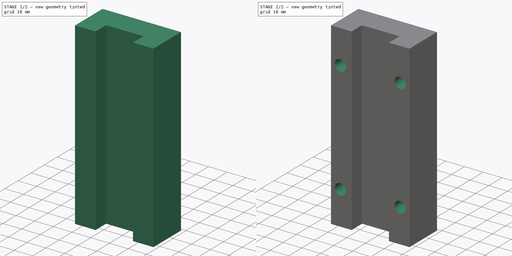
[diagram: build sequence overview — one tinted view per stage of 2, left to right]
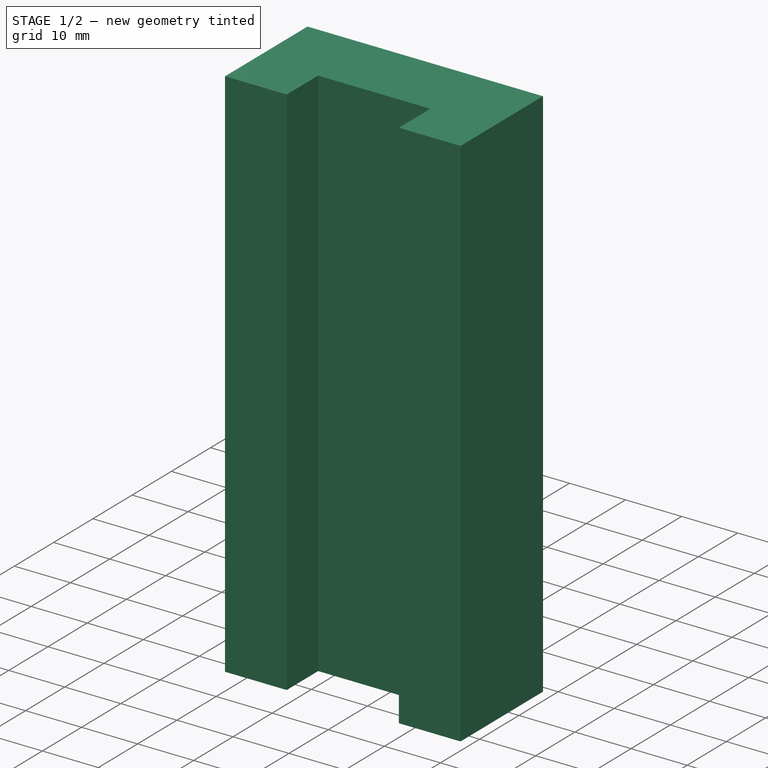
[diagram: stage 1 of 2 — iso view after this stage's code; geometry added in this stage tinted green]
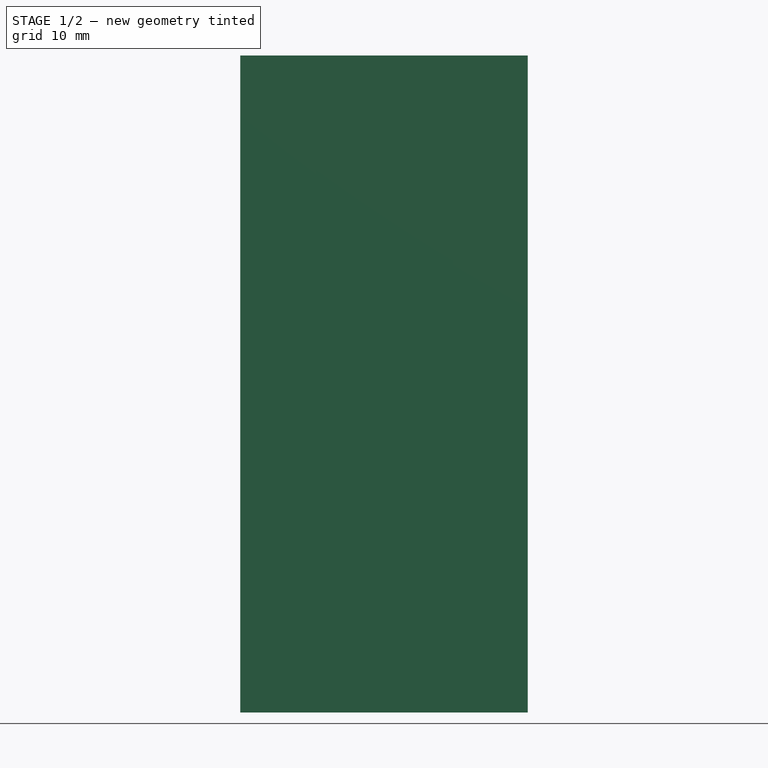
[diagram: stage 1 of 2 — front view after this stage's code; geometry added in this stage tinted green]
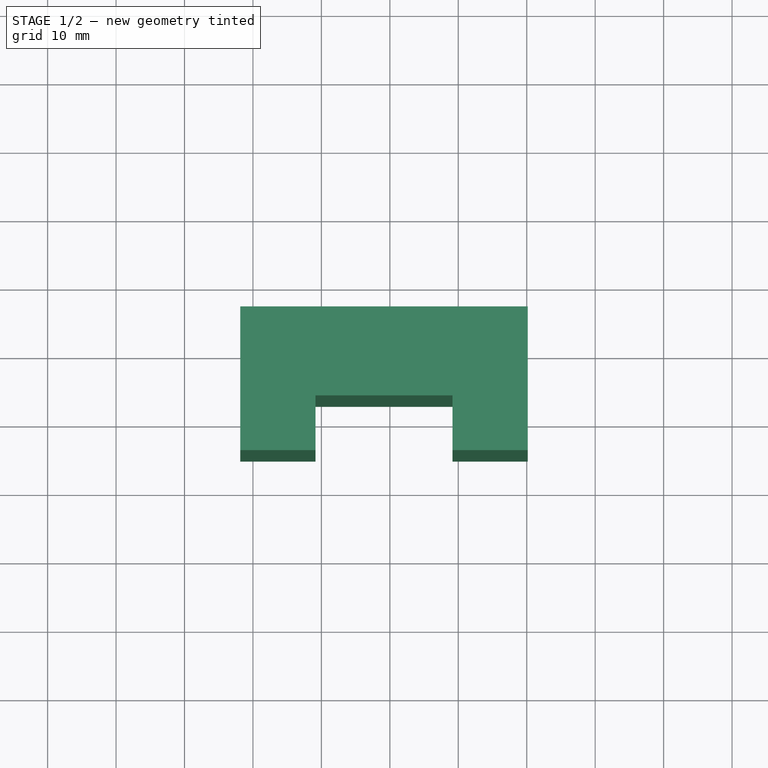
[diagram: stage 1 of 2 — top view after this stage's code; geometry added in this stage tinted green]
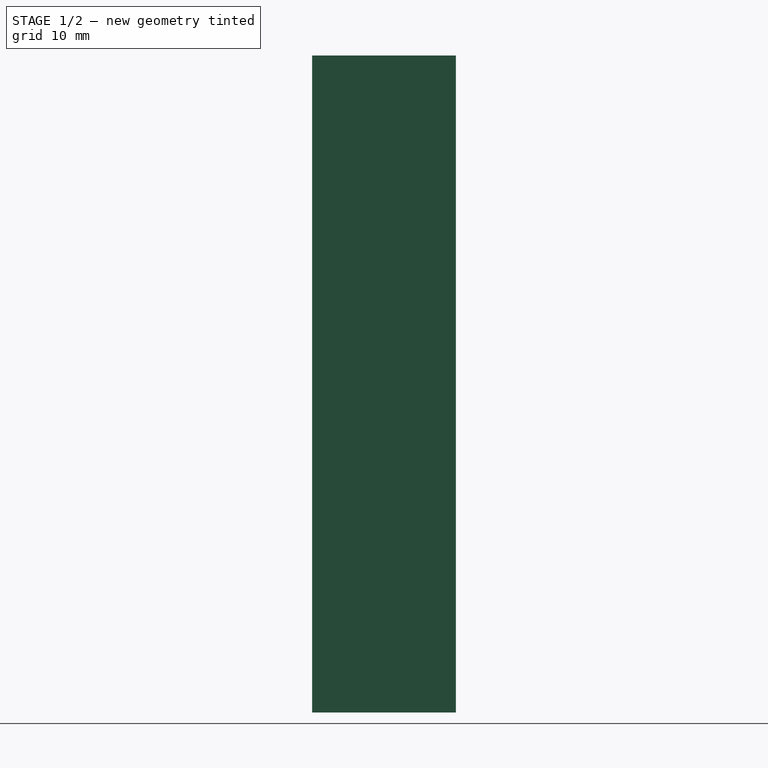
[diagram: stage 1 of 2 — right view after this stage's code; geometry added in this stage tinted green]
FCSTD DOCUMENT  (FreeCAD 0.21R33771 (Git))
Label: slider_on_rail
License: All rights reserved
LicenseURL: http://en.wikipedia.org/wiki/All_rights_reserved
objects: Sketcher::SketchObject×2, PartDesign::Pad×1, PartDesign::Pocket×1, PartDesign::Body×1
note: 7 computed .brp shape members not serialized (recipe doc carries the construction recipe); baked Part::Feature solids carry a one-line shape summary decoded from their .brp

FEATURE [Sketcher::SketchObject] Sketch
  FullyConstrained = false
  MapMode = 5
  Support = -> [XY_Plane]
  sketch-geometry (8):
    g0: LineSegment StartX=-21.8533 StartY=15.9202 StartZ=0 EndX=-21.8533 EndY=-5.07977 EndZ=0
    g1: LineSegment StartX=-21.8533 StartY=-5.07977 StartZ=0 EndX=-10.8533 EndY=-5.07977 EndZ=0
    g2: LineSegment StartX=-10.8533 StartY=-5.07977 StartZ=0 EndX=-10.8533 EndY=2.92023 EndZ=0
    g3: LineSegment StartX=-10.8533 StartY=2.92023 StartZ=0 EndX=9.14671 EndY=2.92023 EndZ=0
    g4: LineSegment StartX=9.14671 StartY=2.92023 StartZ=0 EndX=9.14671 EndY=-5.07977 EndZ=0
    g5: LineSegment StartX=9.14671 StartY=-5.07977 StartZ=0 EndX=20.1467 EndY=-5.07977 EndZ=0
    g6: LineSegment StartX=20.1467 StartY=-5.07977 StartZ=0 EndX=20.1467 EndY=15.9202 EndZ=0
    g7: LineSegment StartX=20.1467 StartY=15.9202 StartZ=0 EndX=-21.8533 EndY=15.9202 EndZ=0
  constraints (22):
    c: Vertical(g0)
    c: Coincident(g1,g0)
    c: Horizontal(g1)
    c: Coincident(g2,g1)
    c: Vertical(g2)
    c: Coincident(g3,g2)
    c: Horizontal(g3)
    c: Coincident(g4,g3)
    c: Vertical(g4)
    c: Coincident(g5,g4)
    c: Horizontal(g5)
    c: Coincident(g6,g5)
    c: Vertical(g6)
    c: Coincident(g7,g6)
    c: Horizontal(g7)
    c: Coincident(g7,g0)
    c: DistanceX(g7,g7) = 42
    c: DistanceY(g6,g6) = 21
    c: DistanceY(g0,g0) = 21
    c: DistanceX(g3,g3) = 20
    c: DistanceX(g5,g5) = 11
    c: DistanceY(g2,g2) = 8
FEATURE [PartDesign::Pad] Pad
  Direction = (0,0,1)
  Length = 96
  Length2 = 10
  Profile = -> Sketch
  ReferenceAxis = -> Sketch [N_Axis]
  Type = 0
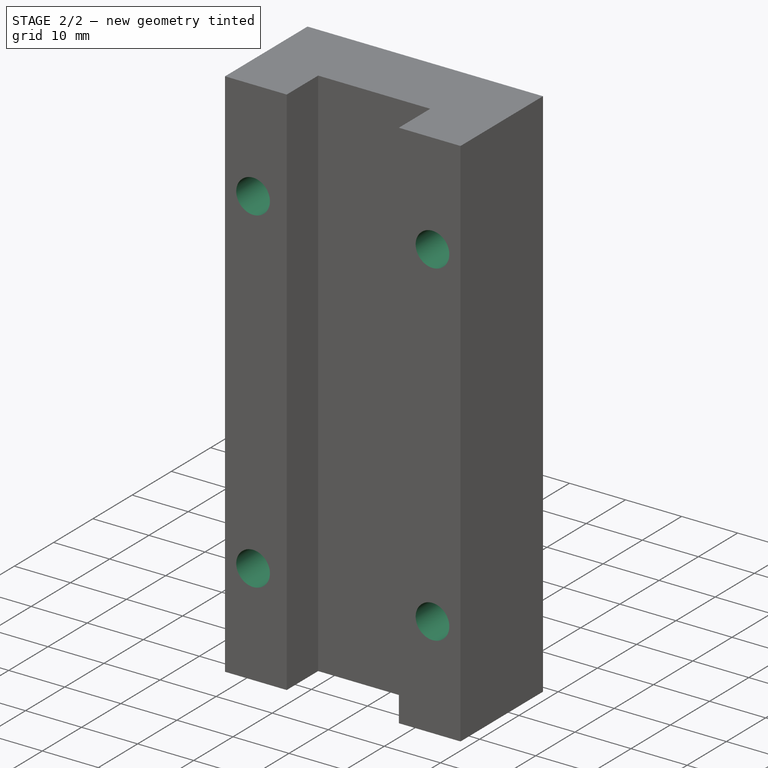
[diagram: stage 2 of 2 — iso view after this stage's code; geometry added in this stage tinted green]
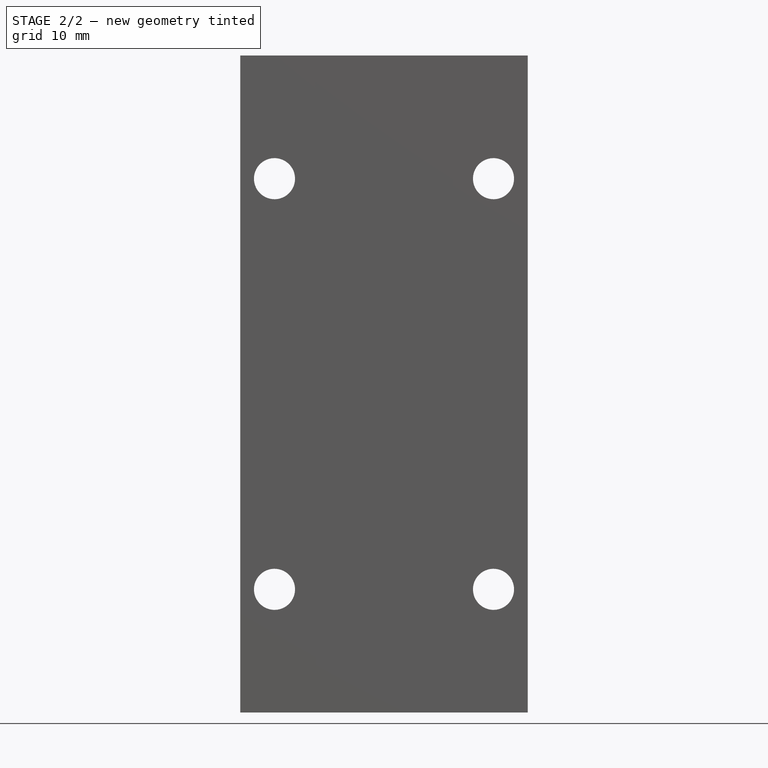
[diagram: stage 2 of 2 — front view after this stage's code; geometry added in this stage tinted green]
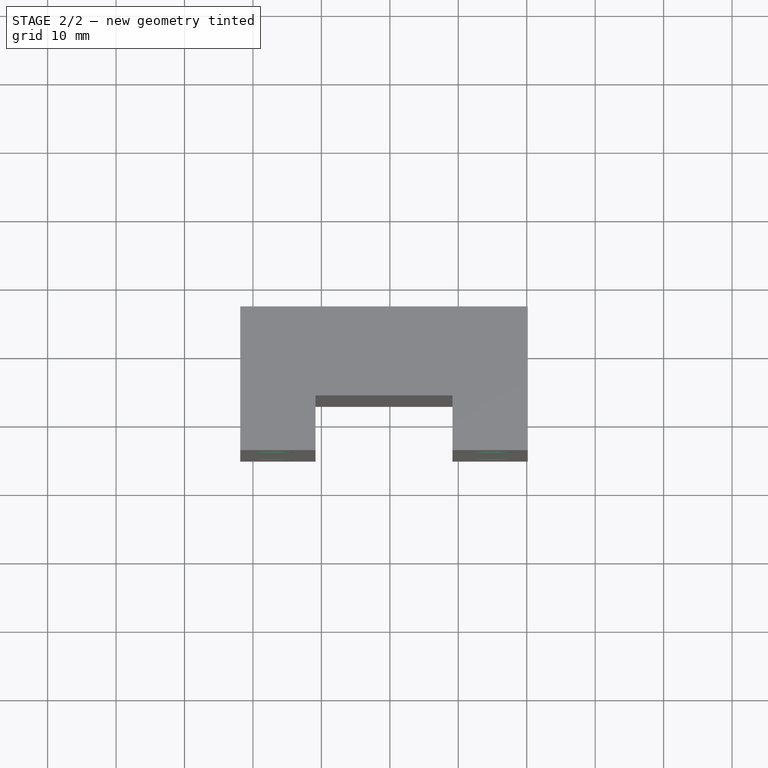
[diagram: stage 2 of 2 — top view after this stage's code; geometry added in this stage tinted green]
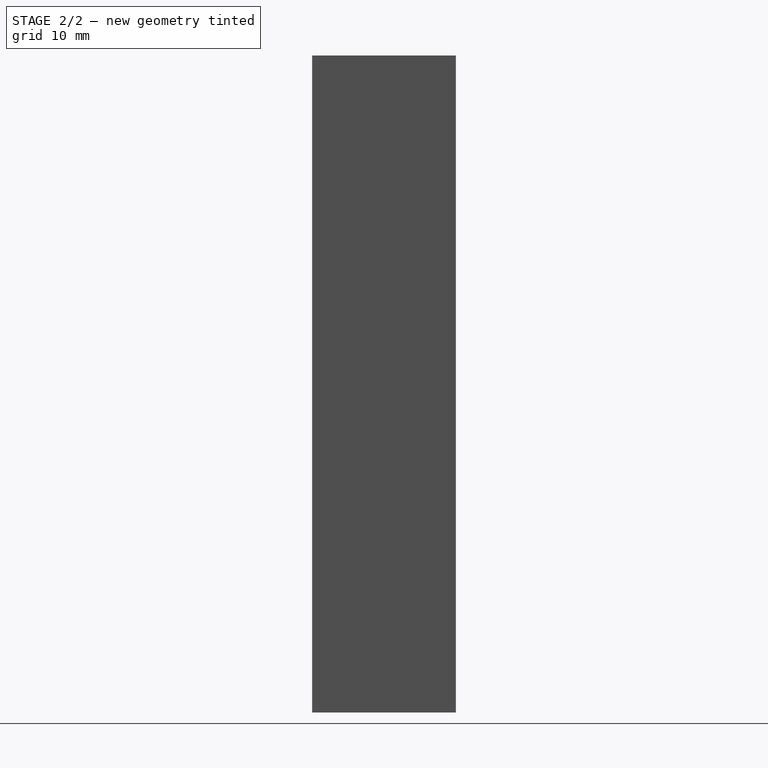
[diagram: stage 2 of 2 — right view after this stage's code; geometry added in this stage tinted green]
FEATURE [Sketcher::SketchObject] Sketch001
  ExternalGeometry = -> [Pad]
  FullyConstrained = true
  MapMode = 5
  Placement = pos=(0,0,0) rot=(1,0,0;1.5708rad)
  Support = -> [XZ_Plane]
  sketch-geometry (4):
    g0: Circle CenterX=-16.8533 CenterY=18 CenterZ=0 NormalX=0 NormalY=0 NormalZ=1 AngleXU=0 Radius=3
    g1: Circle CenterX=-16.8533 CenterY=78 CenterZ=0 NormalX=0 NormalY=0 NormalZ=1 AngleXU=0 Radius=3
    g2: Circle CenterX=15.1467 CenterY=78 CenterZ=0 NormalX=0 NormalY=0 NormalZ=1 AngleXU=0 Radius=3
    g3: Circle CenterX=15.1467 CenterY=18 CenterZ=0 NormalX=0 NormalY=0 NormalZ=1 AngleXU=0 Radius=3
  constraints (16):
    c: Distance(g1,g-3) = 5
    c: Distance(g-5) = 42
    c: Distance(g1,g-5) = 18
    c: Radius(g1) = 3
    c: Distance(g-3) = 96
    c: Distance(g0,g-3) = 5
    c: Radius(g0) = 3
    c: Distance(g0,g-1) = 18
    c: Distance(g3,g-1) = 18
    c: Distance(g3,g-4) = 5
    c: Radius(g3) = 3
    c: Radius(g2) = 3
    c: Distance(g-4) = 96
    c: Distance(g2,g-4) = 5
    c: Distance(g-5) = 42
    c: Distance(g2,g-5) = 18
FEATURE [PartDesign::Pocket] Pocket
  BaseFeature = -> Pad
  Direction = (0,1,-2e-16)
  Length = 1000
  Length2 = 5
  Midplane = true
  Profile = -> Sketch001
  ReferenceAxis = -> Sketch001 [N_Axis]
  Type = 0
FEATURE [PartDesign::Body] Body
  Group = -> [Sketch,Pad,Sketch001,Pocket]
  Origin = -> Origin
  Tip = -> Pocket
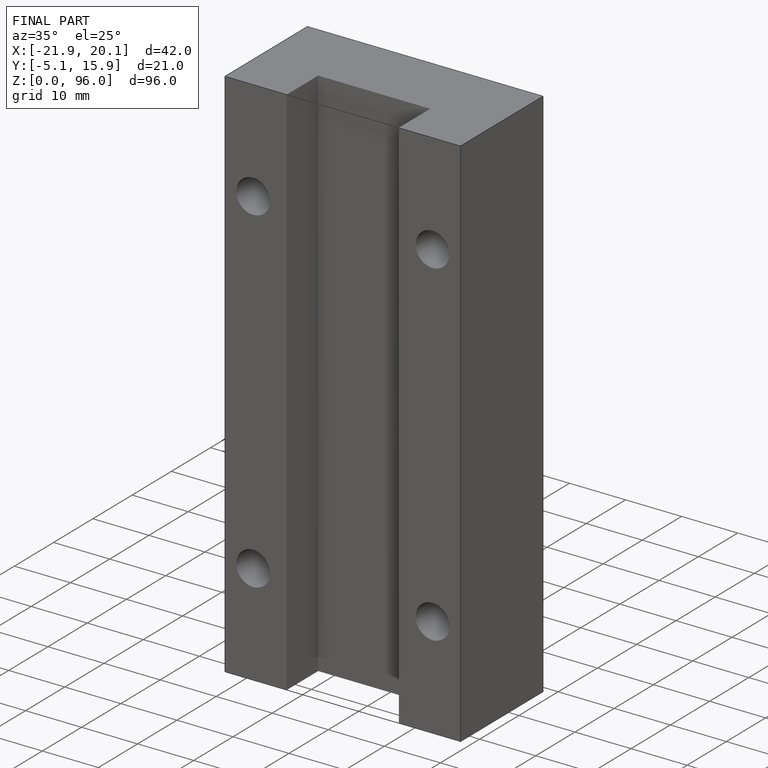
[diagram: finished part — iso view with bounding-box wireframe]
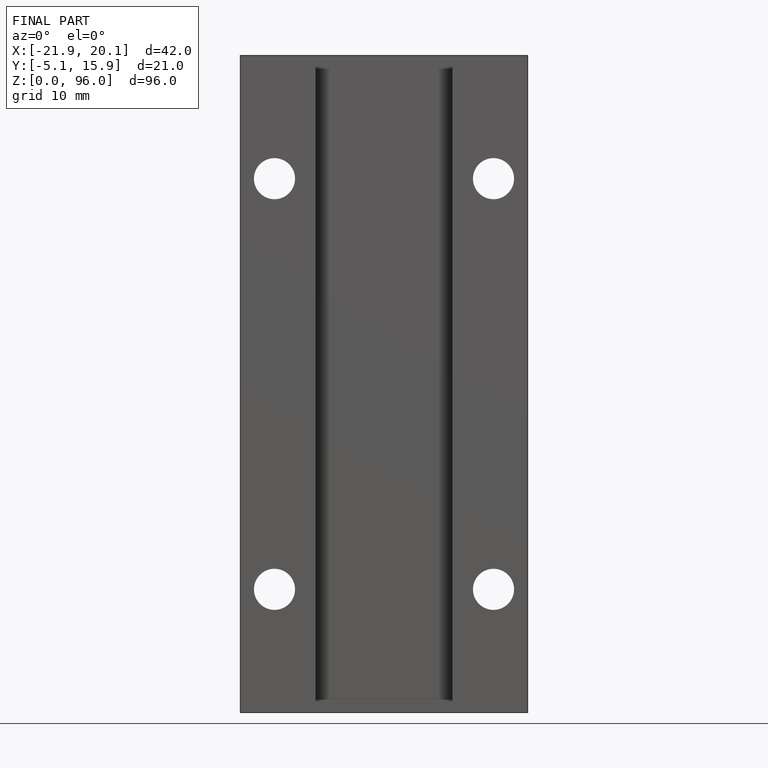
[diagram: finished part — front view with bounding-box wireframe]
